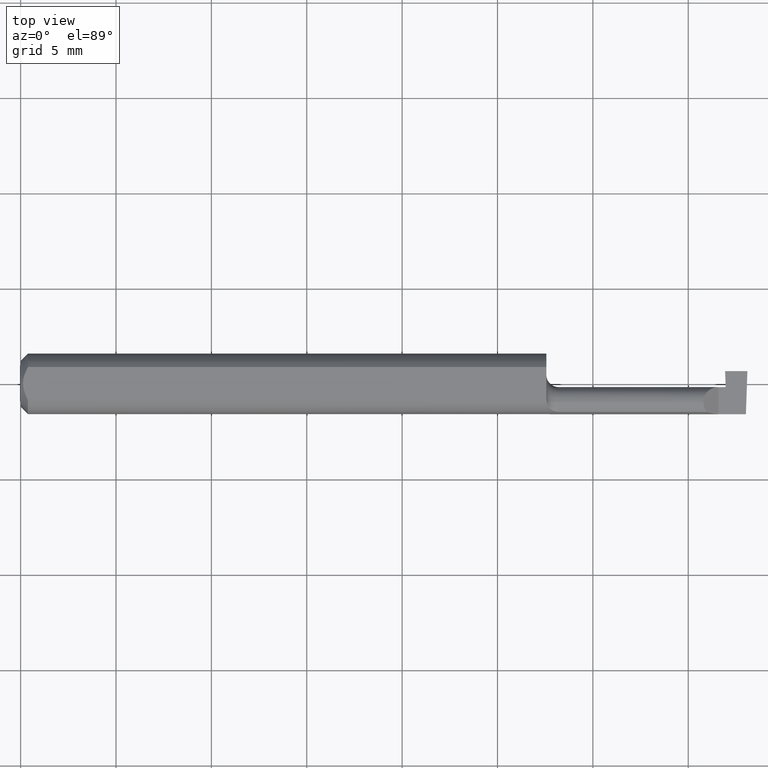
[diagram: clean part render]
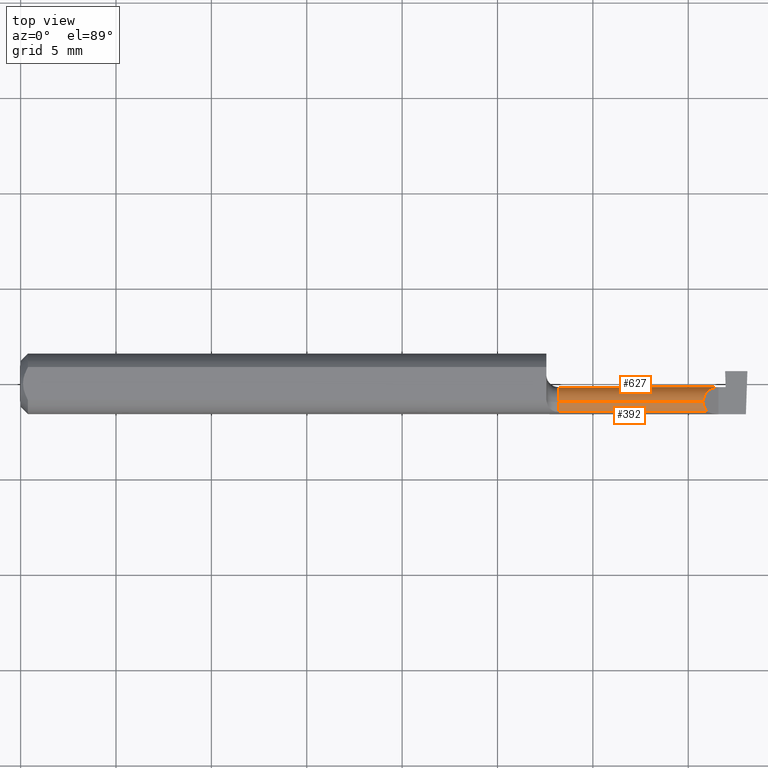
[diagram: same view with one multi-face feature highlighted, each face labeled with its STEP entity id]
A machine part, top view. The highlighted faces form ONE feature: a constant-radius fillet chain: 2 tangent blend faces with common blend radius 0.7874 mm. The faces share edges in the B-rep.
Their STEP definitions:
[1] entity #627 (Cylinder):
#1 =( BOUNDED_CURVE ( )  B_SPLINE_CURVE ( 3, ( #208, #431, #599, #319 ),
 .UNSPECIFIED., .F., .T. ) 
 B_SPLINE_CURVE_WITH_KNOTS ( ( 4, 4 ),
 ( 0.000000000000000000, 1.570796326794896558 ),
 .UNSPECIFIED. ) 
 CURVE ( )  GEOMETRIC_REPRESENTATION_ITEM ( )  RATIONAL_B_SPLINE_CURVE ( ( 1.000000000000000000, 0.8047378541243649375, 0.8047378541243649375, 1.000000000000000000 ) ) 
 REPRESENTATION_ITEM ( '' )  );
#44 = CARTESIAN_POINT ( 'NONE',  ( 1.084999999999999964, -0.006499999999999993630, 5.166678659892382429E-17 ) ) ;
#57 = CARTESIAN_POINT ( 'NONE',  ( 1.110000000000000098, -0.03749999999999999167, 0.000000000000000000 ) ) ;
#103 = VECTOR ( 'NONE', #434, 39.37007874015748143 ) ;
#121 = CARTESIAN_POINT ( 'NONE',  ( 1.409000000000000252, -0.03749999999999999167, 0.03099999999999999978 ) ) ;
#135 = EDGE_CURVE ( 'NONE', #617, #553, #648, .T. ) ;
#136 = ORIENTED_EDGE ( 'NONE', *, *, #135, .F. ) ;
#145 = EDGE_CURVE ( 'NONE', #394, #504, #484, .T. ) ;
#165 = AXIS2_PLACEMENT_3D ( 'NONE', #57, #618, #546 ) ;
#179 = DIRECTION ( 'NONE',  ( -1.000000000000000000, -0.000000000000000000, -0.000000000000000000 ) ) ;
#186 = CARTESIAN_POINT ( 'NONE',  ( 1.455785434802166822, -0.006499999999999978885, -0.01815937956643404530 ) ) ;
#187 = EDGE_CURVE ( 'NONE', #621, #421, #695, .T. ) ;
#208 = CARTESIAN_POINT ( 'NONE',  ( 1.409000000000000252, -0.03749999999999999167, 0.03099999999999999978 ) ) ;
#232 = EDGE_CURVE ( 'NONE', #617, #394, #1, .T. ) ;
#260 = DIRECTION ( 'NONE',  ( -1.000000000000000000, -0.000000000000000000, -0.000000000000000000 ) ) ;
#278 = CARTESIAN_POINT ( 'NONE',  ( 1.455151682536162783, -0.006500000000000021386, 1.132879419432717802E-17 ) ) ;
#286 = FACE_OUTER_BOUND ( 'NONE', #296, .T. ) ;
#296 = EDGE_LOOP ( 'NONE', ( #591, #664, #615, #136, #611, #470 ) ) ;
#319 = CARTESIAN_POINT ( 'NONE',  ( 1.440000000000000169, -0.006500000000000019651, 7.469896857675718968E-18 ) ) ;
#321 = EDGE_CURVE ( 'NONE', #553, #421, #707, .T. ) ;
#323 = DIRECTION ( 'NONE',  ( -1.000000000000000000, -0.000000000000000000, -0.000000000000000000 ) ) ;
#344 = CARTESIAN_POINT ( 'NONE',  ( 1.084999999999999964, -0.03749999999999999167, 0.000000000000000000 ) ) ;
#360 = DIRECTION ( 'NONE',  ( 0.000000000000000000, 0.000000000000000000, 1.000000000000000000 ) ) ;
#369 = CARTESIAN_POINT ( 'NONE',  ( 1.084999999999999964, -0.03749999999999999167, 0.03099999999999999978 ) ) ;
#394 = VERTEX_POINT ( 'NONE', #491 ) ;
#404 = CARTESIAN_POINT ( 'NONE',  ( 1.110000000000000098, -0.03749999999999999167, 0.03099999999999999978 ) ) ;
#411 = CARTESIAN_POINT ( 'NONE',  ( 1.455151682536162783, -0.006500000000000021386, 1.132879419432717802E-17 ) ) ;
#421 = VERTEX_POINT ( 'NONE', #665 ) ;
#431 = CARTESIAN_POINT ( 'NONE',  ( 1.409000000000000474, -0.01934062043356593596, 0.03099999999999999978 ) ) ;
#434 = DIRECTION ( 'NONE',  ( 1.000000000000000000, 0.000000000000000000, 0.000000000000000000 ) ) ;
#449 =( BOUNDED_CURVE ( )  B_SPLINE_CURVE ( 3, ( #681, #473, #186, #411 ),
 .UNSPECIFIED., .F., .T. ) 
 B_SPLINE_CURVE_WITH_KNOTS ( ( 4, 4 ),
 ( 3.140373936913447572, 4.711170263708345018 ),
 .UNSPECIFIED. ) 
 CURVE ( )  GEOMETRIC_REPRESENTATION_ITEM ( )  RATIONAL_B_SPLINE_CURVE ( ( 1.000000000000000000, 0.8047378541243648264, 0.8047378541243648264, 1.000000000000000000 ) ) 
 REPRESENTATION_ITEM ( '' )  );
#470 = ORIENTED_EDGE ( 'NONE', *, *, #145, .T. ) ;
#473 = CARTESIAN_POINT ( 'NONE',  ( 1.456233019182636257, -0.01934062043356593596, -0.03100000000000000325 ) ) ;
#484 = LINE ( 'NONE', #44, #103 ) ;
#491 = CARTESIAN_POINT ( 'NONE',  ( 1.440000000000000169, -0.006500000000000019651, 7.469896857675718968E-18 ) ) ;
#504 = VERTEX_POINT ( 'NONE', #278 ) ;
#516 = VECTOR ( 'NONE', #323, 39.37007874015748143 ) ;
#523 = CARTESIAN_POINT ( 'NONE',  ( 1.456232246817798393, -0.03749999999999999861, -0.03099999999999999978 ) ) ;
#537 = CARTESIAN_POINT ( 'NONE',  ( 1.084999999999999964, -0.03749999999999999167, -0.03099999999999999978 ) ) ;
#546 = DIRECTION ( 'NONE',  ( 0.000000000000000000, 0.000000000000000000, 1.000000000000000000 ) ) ;
#553 = VERTEX_POINT ( 'NONE', #404 ) ;
#582 = VECTOR ( 'NONE', #260, 39.37007874015748143 ) ;
#591 = ORIENTED_EDGE ( 'NONE', *, *, #679, .F. ) ;
#599 = CARTESIAN_POINT ( 'NONE',  ( 1.421840620433566293, -0.006499999999999986691, 0.01815937956643405224 ) ) ;
#611 = ORIENTED_EDGE ( 'NONE', *, *, #232, .T. ) ;
#615 = ORIENTED_EDGE ( 'NONE', *, *, #321, .F. ) ;
#617 = VERTEX_POINT ( 'NONE', #121 ) ;
#618 = DIRECTION ( 'NONE',  ( -1.000000000000000000, -0.000000000000000000, -0.000000000000000000 ) ) ;
#621 = VERTEX_POINT ( 'NONE', #523 ) ;
#627 = ADVANCED_FACE ( 'NONE', ( #286 ), #630, .T. ) ;
#630 = CYLINDRICAL_SURFACE ( 'NONE', #633, 0.03099999999999999978 ) ;
#633 = AXIS2_PLACEMENT_3D ( 'NONE', #344, #179, #360 ) ;
#648 = LINE ( 'NONE', #369, #582 ) ;
#664 = ORIENTED_EDGE ( 'NONE', *, *, #187, .T. ) ;
#665 = CARTESIAN_POINT ( 'NONE',  ( 1.110000000000000098, -0.03749999999999998473, -0.03099999999999999978 ) ) ;
#679 = EDGE_CURVE ( 'NONE', #621, #504, #449, .T. ) ;
#681 = CARTESIAN_POINT ( 'NONE',  ( 1.456232246817798393, -0.03749999999999999861, -0.03099999999999999978 ) ) ;
#695 = LINE ( 'NONE', #537, #516 ) ;
#707 = CIRCLE ( 'NONE', #165, 0.03099999999999999978 ) ;
[2] entity #392 (Cylinder):
#42 = CARTESIAN_POINT ( 'NONE',  ( 1.409000000000000474, -0.04514286293877214917, 0.03099999999999999631 ) ) ;
#55 = ORIENTED_EDGE ( 'NONE', *, *, #417, .F. ) ;
#84 = CIRCLE ( 'NONE', #490, 0.03099999999999999978 ) ;
#121 = CARTESIAN_POINT ( 'NONE',  ( 1.409000000000000252, -0.03749999999999999167, 0.03099999999999999978 ) ) ;
#123 = ORIENTED_EDGE ( 'NONE', *, *, #135, .T. ) ;
#135 = EDGE_CURVE ( 'NONE', #617, #553, #648, .T. ) ;
#139 = VERTEX_POINT ( 'NONE', #211 ) ;
#150 =( BOUNDED_CURVE ( )  B_SPLINE_CURVE ( 3, ( #479, #534, #42, #706 ),
 .UNSPECIFIED., .F., .T. ) 
 B_SPLINE_CURVE_WITH_KNOTS ( ( 4, 4 ),
 ( 5.559787323582177976, 6.283185307179586232 ),
 .UNSPECIFIED. ) 
 CURVE ( )  GEOMETRIC_REPRESENTATION_ITEM ( )  RATIONAL_B_SPLINE_CURVE ( ( 1.000000000000000000, 0.9568646414437724790, 0.9568646414437724790, 1.000000000000000000 ) ) 
 REPRESENTATION_ITEM ( '' )  );
#160 = FACE_OUTER_BOUND ( 'NONE', #653, .T. ) ;
#168 = CARTESIAN_POINT ( 'NONE',  ( 1.110000000000000098, -0.03749999999999999167, 0.000000000000000000 ) ) ;
#182 = DIRECTION ( 'NONE',  ( 1.000000000000000000, 0.000000000000000000, 0.000000000000000000 ) ) ;
#211 = CARTESIAN_POINT ( 'NONE',  ( 1.416763614738949295, -0.05802000000000001600, 0.02323638526105122060 ) ) ;
#225 = DIRECTION ( 'NONE',  ( 0.000000000000000000, 0.000000000000000000, 1.000000000000000000 ) ) ;
#243 = EDGE_CURVE ( 'NONE', #139, #617, #150, .T. ) ;
#260 = DIRECTION ( 'NONE',  ( -1.000000000000000000, -0.000000000000000000, -0.000000000000000000 ) ) ;
#291 = VECTOR ( 'NONE', #182, 39.37007874015748143 ) ;
#331 = CYLINDRICAL_SURFACE ( 'NONE', #645, 0.03099999999999999978 ) ;
#369 = CARTESIAN_POINT ( 'NONE',  ( 1.084999999999999964, -0.03749999999999999167, 0.03099999999999999978 ) ) ;
#382 = DIRECTION ( 'NONE',  ( 0.000000000000000000, 0.000000000000000000, 1.000000000000000000 ) ) ;
#388 = DIRECTION ( 'NONE',  ( -1.000000000000000000, -0.000000000000000000, -0.000000000000000000 ) ) ;
#392 = ADVANCED_FACE ( 'NONE', ( #160 ), #331, .T. ) ;
#396 = ORIENTED_EDGE ( 'NONE', *, *, #458, .T. ) ;
#397 = CARTESIAN_POINT ( 'NONE',  ( 1.084999999999999964, -0.03749999999999999167, 0.000000000000000000 ) ) ;
#404 = CARTESIAN_POINT ( 'NONE',  ( 1.110000000000000098, -0.03749999999999999167, 0.03099999999999999978 ) ) ;
#417 = EDGE_CURVE ( 'NONE', #477, #553, #84, .T. ) ;
#458 = EDGE_CURVE ( 'NONE', #477, #139, #460, .T. ) ;
#460 = LINE ( 'NONE', #622, #291 ) ;
#477 = VERTEX_POINT ( 'NONE', #625 ) ;
#479 = CARTESIAN_POINT ( 'NONE',  ( 1.416763614738949295, -0.05802000000000001600, 0.02323638526105122060 ) ) ;
#490 = AXIS2_PLACEMENT_3D ( 'NONE', #168, #388, #225 ) ;
#534 = CARTESIAN_POINT ( 'NONE',  ( 1.411704532561413483, -0.05229120942765425745, 0.02829546743858684862 ) ) ;
#551 = DIRECTION ( 'NONE',  ( -1.000000000000000000, -0.000000000000000000, -0.000000000000000000 ) ) ;
#553 = VERTEX_POINT ( 'NONE', #404 ) ;
#579 = ORIENTED_EDGE ( 'NONE', *, *, #243, .T. ) ;
#582 = VECTOR ( 'NONE', #260, 39.37007874015748143 ) ;
#617 = VERTEX_POINT ( 'NONE', #121 ) ;
#622 = CARTESIAN_POINT ( 'NONE',  ( 1.282000000000000250, -0.05802000000000000213, 0.02323638526105124835 ) ) ;
#625 = CARTESIAN_POINT ( 'NONE',  ( 1.110000000000000098, -0.05802000000000001600, 0.02323638526105123100 ) ) ;
#645 = AXIS2_PLACEMENT_3D ( 'NONE', #397, #551, #382 ) ;
#648 = LINE ( 'NONE', #369, #582 ) ;
#653 = EDGE_LOOP ( 'NONE', ( #579, #123, #55, #396 ) ) ;
#706 = CARTESIAN_POINT ( 'NONE',  ( 1.409000000000000252, -0.03749999999999999167, 0.03099999999999999978 ) ) ;